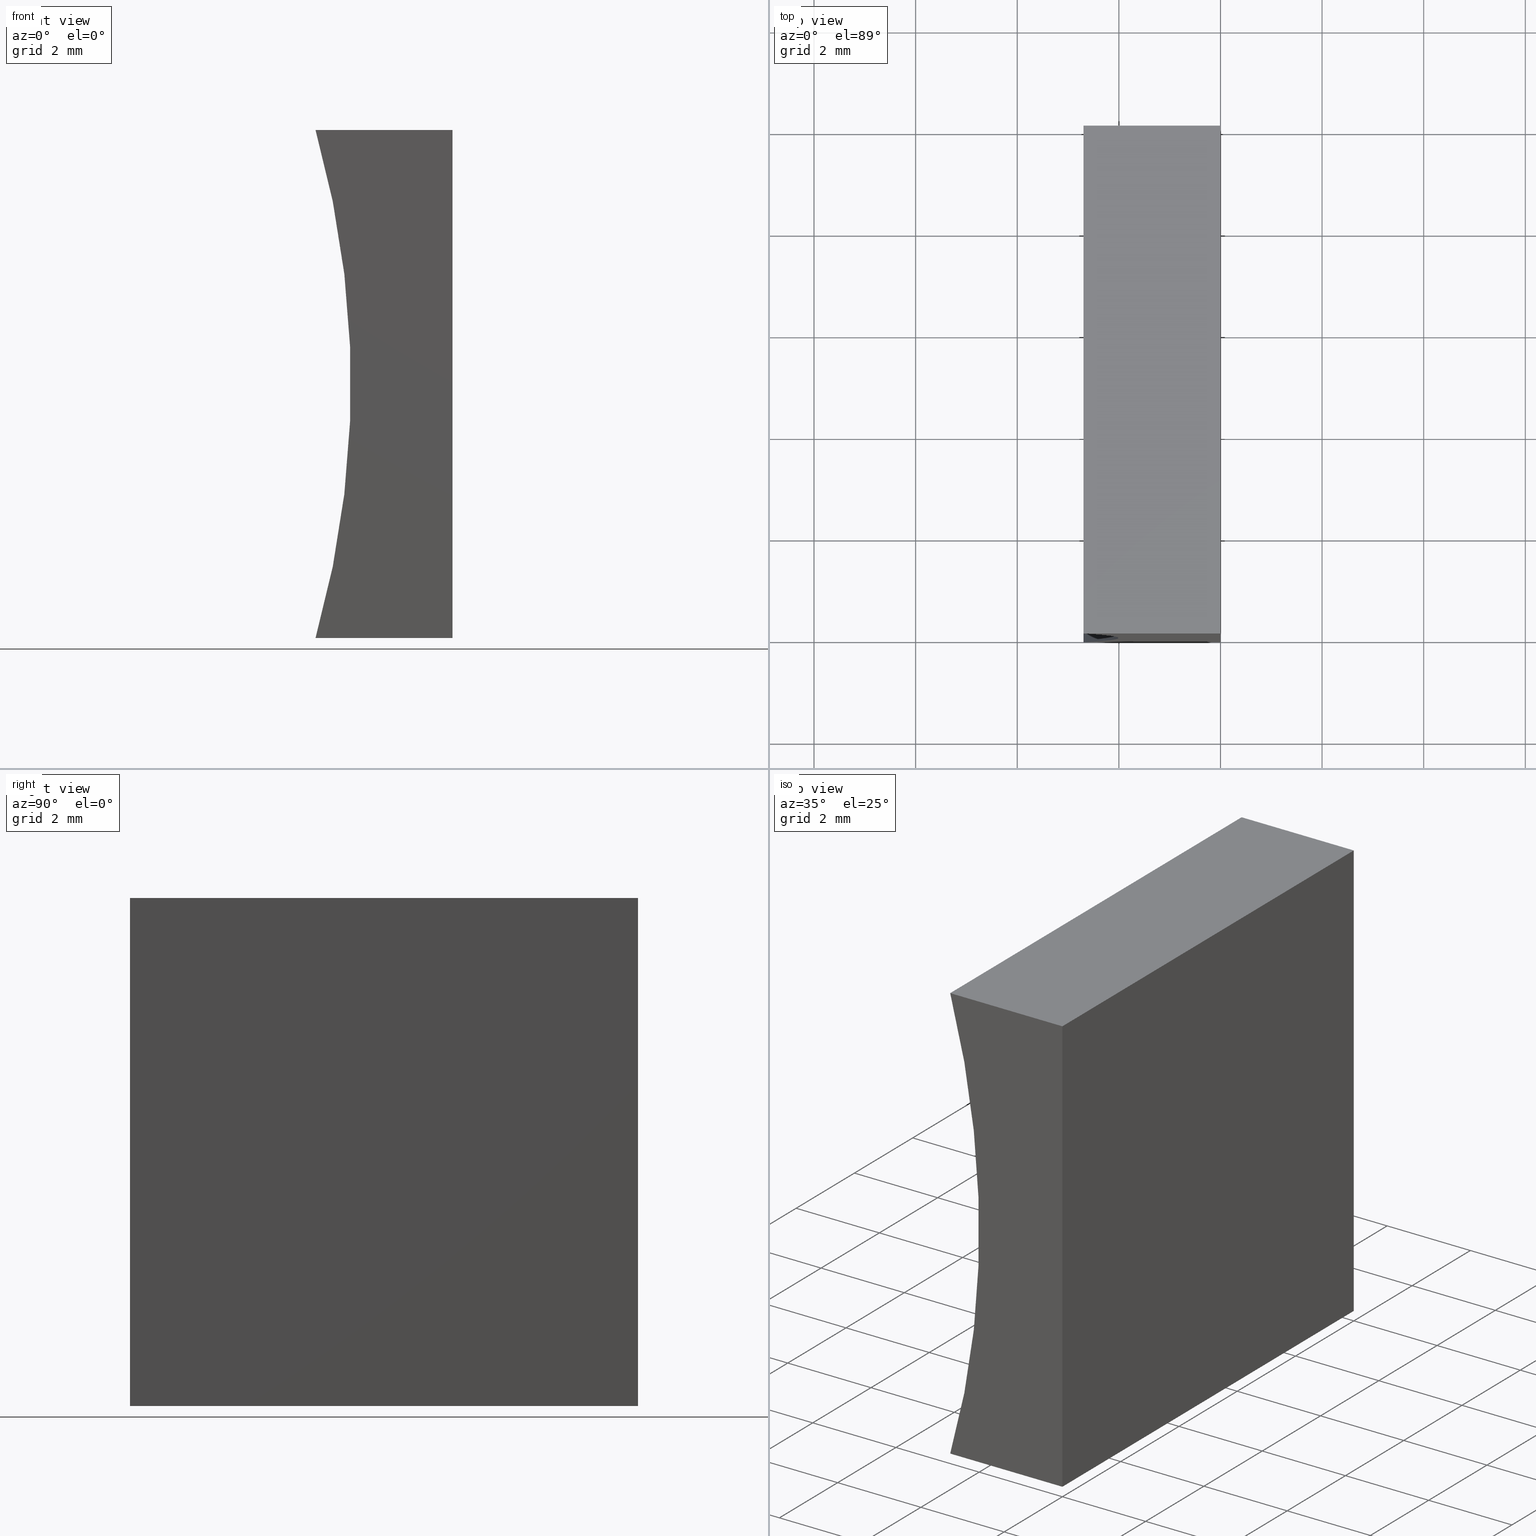
[diagram: canonical four-view strip — front | top / right | iso, engineering-drawing reading convention]
A machine part, canonical four-view strip (front | top / right | iso — engineering-drawing reading convention). The complete STEP part file that produces these views, byte-faithful:
ISO-10303-21;
HEADER;
FILE_DESCRIPTION (( 'STEP AP214' ),
    '1' );
FILE_NAME ('155467.STEP',
    '2019-07-03T05:45:26',
    ( 'user' ),
    ( '΢���й�' ),
    'SwSTEP 2.0',
    'SolidWorks 2016',
    '' );
FILE_SCHEMA (( 'AUTOMOTIVE_DESIGN' ));
ENDSEC;

DATA;
#1 = CARTESIAN_POINT ( 'NONE',  ( -2.695517028860108200, 10.00000000000000000, 10.00000000000000200 ) ) ;
#2 = VECTOR ( 'NONE', #146, 1000.000000000000000 ) ;
#3 = LINE ( 'NONE', #188, #68 ) ;
#4 =( NAMED_UNIT ( * ) SI_UNIT ( $, .STERADIAN. ) SOLID_ANGLE_UNIT ( ) );
#5 = EDGE_CURVE ( 'NONE', #133, #129, #28, .T. ) ;
#6 = CYLINDRICAL_SURFACE ( 'NONE', #38, 18.31999999999999700 ) ;
#7 = COLOUR_RGB ( '',1.000000000000000000, 1.000000000000000000, 1.000000000000000000 ) ;
#8 =( GEOMETRIC_REPRESENTATION_CONTEXT ( 3 ) GLOBAL_UNCERTAINTY_ASSIGNED_CONTEXT ( ( #156 ) ) GLOBAL_UNIT_ASSIGNED_CONTEXT ( ( #31, #195, #4 ) ) REPRESENTATION_CONTEXT ( 'NONE', 'WORKASPACE' ) );
#9 = SURFACE_STYLE_FILL_AREA ( #90 ) ;
#10 = FACE_OUTER_BOUND ( 'NONE', #204, .T. ) ;
#11 = FACE_OUTER_BOUND ( 'NONE', #144, .T. ) ;
#12 = FACE_OUTER_BOUND ( 'NONE', #57, .T. ) ;
#13 = MECHANICAL_DESIGN_GEOMETRIC_PRESENTATION_REPRESENTATION (  '', ( #143 ), #8 ) ;
#14 = CARTESIAN_POINT ( 'NONE',  ( 0.0000000000000000000, 0.0000000000000000000, 0.0000000000000000000 ) ) ;
#15 = CARTESIAN_POINT ( 'NONE',  ( 0.0000000000000000000, 10.00000000000000000, 0.0000000000000000000 ) ) ;
#16 = DIRECTION ( 'NONE',  ( 1.000000000000000000, -0.0000000000000000000, -6.435587152311161100E-016 ) ) ;
#17 = PRESENTATION_LAYER_ASSIGNMENT (  '', '', ( #143 ) ) ;
#18 =( NAMED_UNIT ( * ) SI_UNIT ( $, .STERADIAN. ) SOLID_ANGLE_UNIT ( ) );
#19 = AXIS2_PLACEMENT_3D ( 'NONE', #197, #74, #186 ) ;
#20 = VECTOR ( 'NONE', #141, 1000.000000000000000 ) ;
#21 = EDGE_CURVE ( 'NONE', #105, #129, #203, .T. ) ;
#22 = DIRECTION ( 'NONE',  ( -0.0000000000000000000, -1.000000000000000000, -0.0000000000000000000 ) ) ;
#23 = ADVANCED_FACE ( 'NONE', ( #32 ), #151, .T. ) ;
#24 =( GEOMETRIC_REPRESENTATION_CONTEXT ( 3 ) GLOBAL_UNCERTAINTY_ASSIGNED_CONTEXT ( ( #125 ) ) GLOBAL_UNIT_ASSIGNED_CONTEXT ( ( #132, #130, #166 ) ) REPRESENTATION_CONTEXT ( 'NONE', 'WORKASPACE' ) );
#25 = ORIENTED_EDGE ( 'NONE', *, *, #135, .F. ) ;
#26 = AXIS2_PLACEMENT_3D ( 'NONE', #15, #202, #64 ) ;
#27 = APPLICATION_CONTEXT ( 'automotive_design' ) ;
#28 = LINE ( 'NONE', #134, #20 ) ;
#29 = DIRECTION ( 'NONE',  ( 0.0000000000000000000, 1.000000000000000000, 0.0000000000000000000 ) ) ;
#30 = AXIS2_PLACEMENT_3D ( 'NONE', #54, #111, #69 ) ;
#31 =( LENGTH_UNIT ( ) NAMED_UNIT ( * ) SI_UNIT ( .MILLI., .METRE. ) );
#32 = FACE_OUTER_BOUND ( 'NONE', #149, .T. ) ;
#33 = FILL_AREA_STYLE_COLOUR ( '', #80 ) ;
#34 = PLANE ( 'NONE',  #115 ) ;
#35 = ORIENTED_EDGE ( 'NONE', *, *, #124, .T. ) ;
#36 = CARTESIAN_POINT ( 'NONE',  ( 0.0000000000000000000, 0.0000000000000000000, 0.0000000000000000000 ) ) ;
#37 = CARTESIAN_POINT ( 'NONE',  ( 6.123233995736766300E-016, 10.00000000000000000, 10.00000000000000000 ) ) ;
#38 = AXIS2_PLACEMENT_3D ( 'NONE', #191, #22, #99 ) ;
#39 = LINE ( 'NONE', #1, #55 ) ;
#40 = FACE_OUTER_BOUND ( 'NONE', #77, .T. ) ;
#41 = APPLICATION_PROTOCOL_DEFINITION ( 'draft international standard', 'automotive_design', 1998, #63 ) ;
#42 = FILL_AREA_STYLE ('',( #33 ) ) ;
#43 = VECTOR ( 'NONE', #174, 1000.000000000000000 ) ;
#44 = AXIS2_PLACEMENT_3D ( 'NONE', #47, #161, #201 ) ;
#45 = CARTESIAN_POINT ( 'NONE',  ( 0.0000000000000000000, 10.00000000000000000, 0.0000000000000000000 ) ) ;
#46 = FACE_OUTER_BOUND ( 'NONE', #153, .T. ) ;
#47 = CARTESIAN_POINT ( 'NONE',  ( -20.31999999999999700, 0.0000000000000000000, 5.000000000000000000 ) ) ;
#48 = EDGE_CURVE ( 'NONE', #102, #181, #172, .T. ) ;
#49 = PRODUCT_RELATED_PRODUCT_CATEGORY ( 'part', '', ( #96 ) ) ;
#50 = EDGE_CURVE ( 'NONE', #180, #133, #58, .T. ) ;
#51 = LINE ( 'NONE', #37, #76 ) ;
#52 = DIRECTION ( 'NONE',  ( 0.0000000000000000000, -0.0000000000000000000, 1.000000000000000000 ) ) ;
#53 = EDGE_CURVE ( 'NONE', #102, #117, #152, .T. ) ;
#54 = CARTESIAN_POINT ( 'NONE',  ( 6.123233995736766300E-016, 10.00000000000000000, 10.00000000000000000 ) ) ;
#55 = VECTOR ( 'NONE', #182, 1000.000000000000000 ) ;
#56 = CIRCLE ( 'NONE', #44, 18.31999999999999700 ) ;
#57 = EDGE_LOOP ( 'NONE', ( #178, #72, #185, #190 ) ) ;
#58 = LINE ( 'NONE', #108, #70 ) ;
#59 = PLANE ( 'NONE',  #107 ) ;
#60 = SURFACE_STYLE_FILL_AREA ( #42 ) ;
#61 = CARTESIAN_POINT ( 'NONE',  ( -20.31999999999999700, 0.0000000000000000000, 5.000000000000000000 ) ) ;
#62 = EDGE_CURVE ( 'NONE', #133, #102, #65, .T. ) ;
#63 = APPLICATION_CONTEXT ( 'automotive_design' ) ;
#64 = DIRECTION ( 'NONE',  ( 1.000000000000000000, 0.0000000000000000000, -1.430855114987436600E-016 ) ) ;
#65 = LINE ( 'NONE', #200, #2 ) ;
#66 = VERTEX_POINT ( 'NONE', #131 ) ;
#67 = CARTESIAN_POINT ( 'NONE',  ( -2.695517028860110000, 0.0000000000000000000, 8.673617379884035500E-016 ) ) ;
#68 = VECTOR ( 'NONE', #16, 1000.000000000000000 ) ;
#69 = DIRECTION ( 'NONE',  ( -1.000000000000000000, 0.0000000000000000000, 6.435587152311161100E-016 ) ) ;
#70 = VECTOR ( 'NONE', #97, 1000.000000000000000 ) ;
#71 = VECTOR ( 'NONE', #150, 1000.000000000000000 ) ;
#72 = ORIENTED_EDGE ( 'NONE', *, *, #193, .F. ) ;
#73 = LINE ( 'NONE', #36, #43 ) ;
#74 = DIRECTION ( 'NONE',  ( -0.0000000000000000000, -1.000000000000000000, -0.0000000000000000000 ) ) ;
#75 = AXIS2_PLACEMENT_3D ( 'NONE', #121, #29, #52 ) ;
#76 = VECTOR ( 'NONE', #184, 1000.000000000000000 ) ;
#77 = EDGE_LOOP ( 'NONE', ( #177, #162, #157, #148 ) ) ;
#78 = LINE ( 'NONE', #154, #82 ) ;
#79 = CLOSED_SHELL ( 'NONE', ( #86, #100, #170, #128, #23, #106 ) ) ;
#80 = COLOUR_RGB ( '',1.000000000000000000, 1.000000000000000000, 1.000000000000000000 ) ;
#81 = DIRECTION ( 'NONE',  ( -1.000000000000000000, 0.0000000000000000000, 6.123233995736766000E-017 ) ) ;
#82 = VECTOR ( 'NONE', #175, 1000.000000000000000 ) ;
#83 = ORIENTED_EDGE ( 'NONE', *, *, #139, .F. ) ;
#84 = DIRECTION ( 'NONE',  ( 0.0000000000000000000, 0.0000000000000000000, 1.000000000000000000 ) ) ;
#85 =( GEOMETRIC_REPRESENTATION_CONTEXT ( 3 ) GLOBAL_UNCERTAINTY_ASSIGNED_CONTEXT ( ( #127 ) ) GLOBAL_UNIT_ASSIGNED_CONTEXT ( ( #87, #179, #18 ) ) REPRESENTATION_CONTEXT ( 'NONE', 'WORKASPACE' ) );
#86 = ADVANCED_FACE ( 'NONE', ( #46 ), #113, .F. ) ;
#87 =( LENGTH_UNIT ( ) NAMED_UNIT ( * ) SI_UNIT ( .MILLI., .METRE. ) );
#88 = PRESENTATION_STYLE_ASSIGNMENT (( #155 ) ) ;
#89 = PRESENTATION_STYLE_ASSIGNMENT (( #118 ) ) ;
#90 = FILL_AREA_STYLE ('',( #192 ) ) ;
#91 = PRODUCT_DEFINITION_CONTEXT ( 'detailed design', #63, 'design' ) ;
#92 = CARTESIAN_POINT ( 'NONE',  ( -2.695517028860110000, 10.00000000000000000, 8.673617379884035500E-016 ) ) ;
#93 = ADVANCED_BREP_SHAPE_REPRESENTATION ( '155467', ( #126, #187 ), #24 ) ;
#94 = SURFACE_SIDE_STYLE ('',( #60 ) ) ;
#95 = DIRECTION ( 'NONE',  ( 0.0000000000000000000, -0.0000000000000000000, 1.000000000000000000 ) ) ;
#96 = PRODUCT ( '155467', '155467', '', ( #159 ) ) ;
#97 = DIRECTION ( 'NONE',  ( -6.123233995736766000E-017, -0.0000000000000000000, -1.000000000000000000 ) ) ;
#98 = CARTESIAN_POINT ( 'NONE',  ( 6.123233995736766300E-016, 10.00000000000000000, 10.00000000000000000 ) ) ;
#99 = DIRECTION ( 'NONE',  ( 0.0000000000000000000, 0.0000000000000000000, -1.000000000000000000 ) ) ;
#100 = ADVANCED_FACE ( 'NONE', ( #10 ), #6, .F. ) ;
#101 = STYLED_ITEM ( 'NONE', ( #89 ), #126 ) ;
#102 = VERTEX_POINT ( 'NONE', #163 ) ;
#103 = ORIENTED_EDGE ( 'NONE', *, *, #199, .F. ) ;
#104 = SHAPE_DEFINITION_REPRESENTATION ( #171, #93 ) ;
#105 = VERTEX_POINT ( 'NONE', #196 ) ;
#106 = ADVANCED_FACE ( 'NONE', ( #11 ), #34, .F. ) ;
#107 = AXIS2_PLACEMENT_3D ( 'NONE', #142, #81, #169 ) ;
#108 = CARTESIAN_POINT ( 'NONE',  ( 0.0000000000000000000, 10.00000000000000000, 0.0000000000000000000 ) ) ;
#109 = MECHANICAL_DESIGN_GEOMETRIC_PRESENTATION_REPRESENTATION (  '', ( #101 ), #85 ) ;
#110 = DIRECTION ( 'NONE',  ( 0.0000000000000000000, 1.000000000000000000, 0.0000000000000000000 ) ) ;
#111 = DIRECTION ( 'NONE',  ( -6.435587152311161100E-016, 0.0000000000000000000, -1.000000000000000000 ) ) ;
#112 = ORIENTED_EDGE ( 'NONE', *, *, #167, .T. ) ;
#113 = PLANE ( 'NONE',  #26 ) ;
#114 = ORIENTED_EDGE ( 'NONE', *, *, #167, .F. ) ;
#115 = AXIS2_PLACEMENT_3D ( 'NONE', #61, #110, #95 ) ;
#116 = APPLICATION_PROTOCOL_DEFINITION ( 'draft international standard', 'automotive_design', 1998, #27 ) ;
#117 = VERTEX_POINT ( 'NONE', #67 ) ;
#118 = SURFACE_STYLE_USAGE ( .BOTH. , #189 ) ;
#119 = ORIENTED_EDGE ( 'NONE', *, *, #48, .T. ) ;
#120 = PRESENTATION_LAYER_ASSIGNMENT (  '', '', ( #101 ) ) ;
#121 = CARTESIAN_POINT ( 'NONE',  ( -20.31999999999999700, 10.00000000000000000, 5.000000000000000000 ) ) ;
#122 = DIRECTION ( 'NONE',  ( -6.123233995736766000E-017, -0.0000000000000000000, -1.000000000000000000 ) ) ;
#123 = ORIENTED_EDGE ( 'NONE', *, *, #50, .T. ) ;
#124 = EDGE_CURVE ( 'NONE', #181, #180, #3, .T. ) ;
#125 = UNCERTAINTY_MEASURE_WITH_UNIT (LENGTH_MEASURE( 1.000000000000000100E-005 ), #132, 'distance_accuracy_value', 'NONE');
#126 = MANIFOLD_SOLID_BREP ( '͹̨-����1', #79 ) ;
#127 = UNCERTAINTY_MEASURE_WITH_UNIT (LENGTH_MEASURE( 1.000000000000000100E-005 ), #87, 'distance_accuracy_value', 'NONE');
#128 = ADVANCED_FACE ( 'NONE', ( #40 ), #59, .F. ) ;
#129 = VERTEX_POINT ( 'NONE', #14 ) ;
#130 =( NAMED_UNIT ( * ) PLANE_ANGLE_UNIT ( ) SI_UNIT ( $, .RADIAN. ) );
#131 = CARTESIAN_POINT ( 'NONE',  ( -2.695517028860108200, 0.0000000000000000000, 10.00000000000000200 ) ) ;
#132 =( LENGTH_UNIT ( ) NAMED_UNIT ( * ) SI_UNIT ( .MILLI., .METRE. ) );
#133 = VERTEX_POINT ( 'NONE', #45 ) ;
#134 = CARTESIAN_POINT ( 'NONE',  ( 0.0000000000000000000, 10.00000000000000000, 0.0000000000000000000 ) ) ;
#135 = EDGE_CURVE ( 'NONE', #181, #66, #39, .T. ) ;
#136 = ORIENTED_EDGE ( 'NONE', *, *, #62, .T. ) ;
#137 = CARTESIAN_POINT ( 'NONE',  ( -2.695517028860108200, 10.00000000000000000, 10.00000000000000200 ) ) ;
#138 = ORIENTED_EDGE ( 'NONE', *, *, #48, .F. ) ;
#139 = EDGE_CURVE ( 'NONE', #129, #117, #73, .T. ) ;
#140 = PRODUCT_DEFINITION ( 'δ֪', '', #160, #91 ) ;
#141 = DIRECTION ( 'NONE',  ( -0.0000000000000000000, -1.000000000000000000, -0.0000000000000000000 ) ) ;
#142 = CARTESIAN_POINT ( 'NONE',  ( 0.0000000000000000000, 10.00000000000000000, 0.0000000000000000000 ) ) ;
#143 = STYLED_ITEM ( 'NONE', ( #88 ), #93 ) ;
#144 = EDGE_LOOP ( 'NONE', ( #83, #198, #103, #114 ) ) ;
#145 = VECTOR ( 'NONE', #122, 1000.000000000000000 ) ;
#146 = DIRECTION ( 'NONE',  ( -1.000000000000000000, 0.0000000000000000000, 1.430855114987436600E-016 ) ) ;
#147 = ORIENTED_EDGE ( 'NONE', *, *, #53, .F. ) ;
#148 = ORIENTED_EDGE ( 'NONE', *, *, #193, .T. ) ;
#149 = EDGE_LOOP ( 'NONE', ( #136, #119, #35, #123 ) ) ;
#150 = DIRECTION ( 'NONE',  ( -0.0000000000000000000, -1.000000000000000000, -0.0000000000000000000 ) ) ;
#151 = PLANE ( 'NONE',  #75 ) ;
#152 = LINE ( 'NONE', #92, #71 ) ;
#153 = EDGE_LOOP ( 'NONE', ( #168, #147, #194, #158 ) ) ;
#154 = CARTESIAN_POINT ( 'NONE',  ( 6.123233995736766300E-016, 0.0000000000000000000, 10.00000000000000000 ) ) ;
#155 = SURFACE_STYLE_USAGE ( .BOTH. , #94 ) ;
#156 = UNCERTAINTY_MEASURE_WITH_UNIT (LENGTH_MEASURE( 1.000000000000000100E-005 ), #31, 'distance_accuracy_value', 'NONE');
#157 = ORIENTED_EDGE ( 'NONE', *, *, #50, .F. ) ;
#158 = ORIENTED_EDGE ( 'NONE', *, *, #5, .T. ) ;
#159 = PRODUCT_CONTEXT ( 'NONE', #27, 'mechanical' ) ;
#160 = PRODUCT_DEFINITION_FORMATION_WITH_SPECIFIED_SOURCE ( '�κ�', '', #96, .NOT_KNOWN. ) ;
#161 = DIRECTION ( 'NONE',  ( -0.0000000000000000000, -1.000000000000000000, -0.0000000000000000000 ) ) ;
#162 = ORIENTED_EDGE ( 'NONE', *, *, #5, .F. ) ;
#163 = CARTESIAN_POINT ( 'NONE',  ( -2.695517028860110000, 10.00000000000000000, 8.673617379884035500E-016 ) ) ;
#164 = ORIENTED_EDGE ( 'NONE', *, *, #53, .T. ) ;
#165 = DIRECTION ( 'NONE',  ( 1.000000000000000000, 0.0000000000000000000, 0.0000000000000000000 ) ) ;
#166 =( NAMED_UNIT ( * ) SI_UNIT ( $, .STERADIAN. ) SOLID_ANGLE_UNIT ( ) );
#167 = EDGE_CURVE ( 'NONE', #117, #66, #56, .T. ) ;
#168 = ORIENTED_EDGE ( 'NONE', *, *, #139, .T. ) ;
#169 = DIRECTION ( 'NONE',  ( 6.123233995736766000E-017, 0.0000000000000000000, 1.000000000000000000 ) ) ;
#170 = ADVANCED_FACE ( 'NONE', ( #12 ), #173, .F. ) ;
#171 = PRODUCT_DEFINITION_SHAPE ( 'NONE', 'NONE',  #140 ) ;
#172 = CIRCLE ( 'NONE', #19, 18.31999999999999700 ) ;
#173 = PLANE ( 'NONE',  #30 ) ;
#174 = DIRECTION ( 'NONE',  ( -1.000000000000000000, 0.0000000000000000000, 1.430855114987436600E-016 ) ) ;
#175 = DIRECTION ( 'NONE',  ( 1.000000000000000000, -0.0000000000000000000, -6.435587152311161100E-016 ) ) ;
#176 = CARTESIAN_POINT ( 'NONE',  ( 0.0000000000000000000, 0.0000000000000000000, 0.0000000000000000000 ) ) ;
#177 = ORIENTED_EDGE ( 'NONE', *, *, #21, .T. ) ;
#178 = ORIENTED_EDGE ( 'NONE', *, *, #199, .T. ) ;
#179 =( NAMED_UNIT ( * ) PLANE_ANGLE_UNIT ( ) SI_UNIT ( $, .RADIAN. ) );
#180 = VERTEX_POINT ( 'NONE', #98 ) ;
#181 = VERTEX_POINT ( 'NONE', #137 ) ;
#182 = DIRECTION ( 'NONE',  ( -0.0000000000000000000, -1.000000000000000000, -0.0000000000000000000 ) ) ;
#183 = CARTESIAN_POINT ( 'NONE',  ( 0.0000000000000000000, 0.0000000000000000000, 0.0000000000000000000 ) ) ;
#184 = DIRECTION ( 'NONE',  ( -0.0000000000000000000, -1.000000000000000000, -0.0000000000000000000 ) ) ;
#185 = ORIENTED_EDGE ( 'NONE', *, *, #124, .F. ) ;
#186 = DIRECTION ( 'NONE',  ( 0.0000000000000000000, 0.0000000000000000000, 1.000000000000000000 ) ) ;
#187 = AXIS2_PLACEMENT_3D ( 'NONE', #183, #84, #165 ) ;
#188 = CARTESIAN_POINT ( 'NONE',  ( 6.123233995736766300E-016, 10.00000000000000000, 10.00000000000000000 ) ) ;
#189 = SURFACE_SIDE_STYLE ('',( #9 ) ) ;
#190 = ORIENTED_EDGE ( 'NONE', *, *, #135, .T. ) ;
#191 = CARTESIAN_POINT ( 'NONE',  ( -20.31999999999999700, 10.00000000000000000, 5.000000000000000000 ) ) ;
#192 = FILL_AREA_STYLE_COLOUR ( '', #7 ) ;
#193 = EDGE_CURVE ( 'NONE', #180, #105, #51, .T. ) ;
#194 = ORIENTED_EDGE ( 'NONE', *, *, #62, .F. ) ;
#195 =( NAMED_UNIT ( * ) PLANE_ANGLE_UNIT ( ) SI_UNIT ( $, .RADIAN. ) );
#196 = CARTESIAN_POINT ( 'NONE',  ( 6.123233995736766300E-016, 0.0000000000000000000, 10.00000000000000000 ) ) ;
#197 = CARTESIAN_POINT ( 'NONE',  ( -20.31999999999999700, 10.00000000000000000, 5.000000000000000000 ) ) ;
#198 = ORIENTED_EDGE ( 'NONE', *, *, #21, .F. ) ;
#199 = EDGE_CURVE ( 'NONE', #66, #105, #78, .T. ) ;
#200 = CARTESIAN_POINT ( 'NONE',  ( 0.0000000000000000000, 10.00000000000000000, 0.0000000000000000000 ) ) ;
#201 = DIRECTION ( 'NONE',  ( 0.0000000000000000000, 0.0000000000000000000, 1.000000000000000000 ) ) ;
#202 = DIRECTION ( 'NONE',  ( 1.430855114987436600E-016, -0.0000000000000000000, 1.000000000000000000 ) ) ;
#203 = LINE ( 'NONE', #176, #145 ) ;
#204 = EDGE_LOOP ( 'NONE', ( #112, #25, #138, #164 ) ) ;
ENDSEC;
END-ISO-10303-21;
